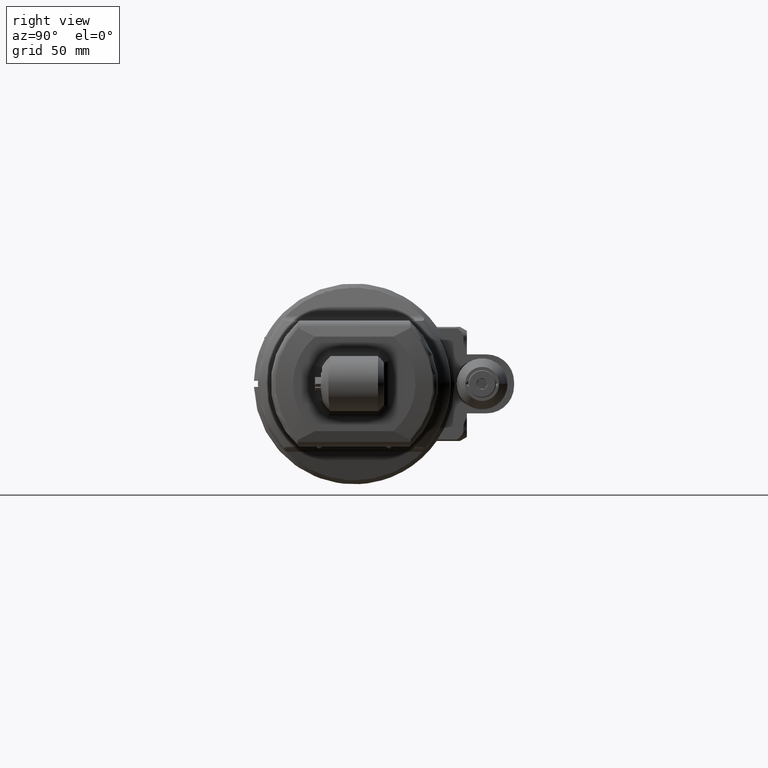
[diagram: clean part render]
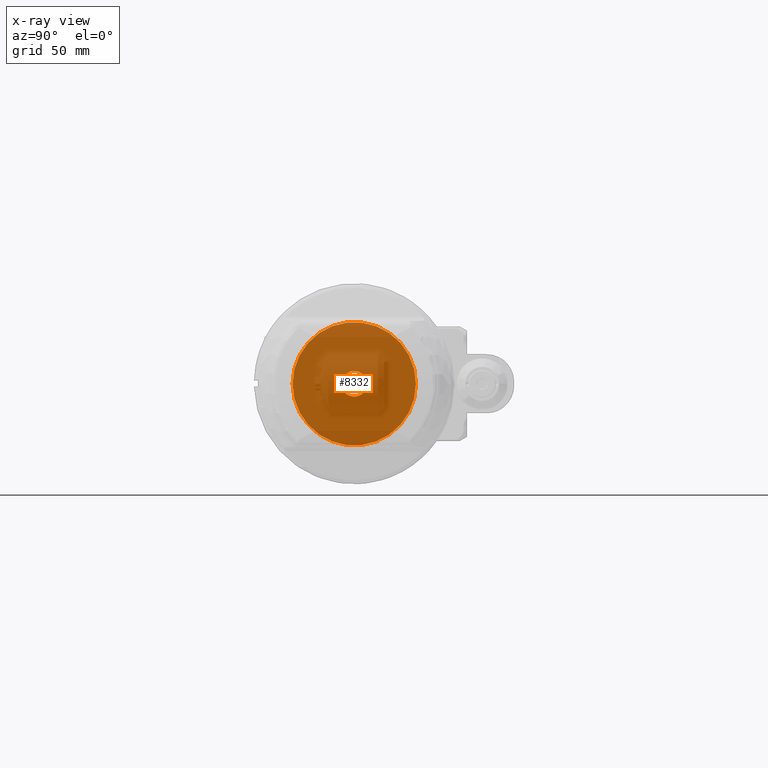
[diagram: x-ray — body ghosted, one internal face saturated and labeled with its STEP entity id]
A machine part, right view, then the same camera in x-ray: the body is ghosted and one INTERNAL B-rep face — a face not visible from any outside direction — is saturated and labeled: STEP entity #8332.
In plain terms, the highlighted planar face has unit normal (1, 0, 0).
Its self-contained STEP definition (entity closure, byte-faithful):
#306=FACE_BOUND('',#1575,.T.);
#562=PLANE('',#9219);
#1030=FACE_OUTER_BOUND('',#1574,.T.);
#1574=EDGE_LOOP('',(#7573));
#1575=EDGE_LOOP('',(#7574));
#3260=CIRCLE('',#9195,31.35);
#3269=CIRCLE('',#9220,6.5);
#4022=VERTEX_POINT('',#45324);
#4045=VERTEX_POINT('',#45421);
#5198=EDGE_CURVE('',#4022,#4022,#3260,.T.);
#5235=EDGE_CURVE('',#4045,#4045,#3269,.T.);
#7573=ORIENTED_EDGE('',*,*,#5198,.T.);
#7574=ORIENTED_EDGE('',*,*,#5235,.T.);
#8332=ADVANCED_FACE('',(#1030,#306),#562,.T.);
#9195=AXIS2_PLACEMENT_3D('',#45326,#11333,#11334);
#9219=AXIS2_PLACEMENT_3D('',#45420,#11399,#11400);
#9220=AXIS2_PLACEMENT_3D('',#45422,#11401,#11402);
#11333=DIRECTION('center_axis',(1.,0.,0.));
#11334=DIRECTION('ref_axis',(0.,1.,-1.400901549979E-9));
#11399=DIRECTION('center_axis',(1.,0.,0.));
#11400=DIRECTION('ref_axis',(0.,1.,-1.400901672444E-9));
#11401=DIRECTION('center_axis',(-1.,0.,0.));
#11402=DIRECTION('ref_axis',(0.,-1.,0.));
#45324=CARTESIAN_POINT('',(-44.0000000000002,31.35,-4.391826744364E-8));
#45326=CARTESIAN_POINT('Origin',(-44.0000000000002,0.,0.));
#45420=CARTESIAN_POINT('Origin',(-44.0000000000002,0.,0.));
#45421=CARTESIAN_POINT('',(-44.0000000000001,6.5,0.));
#45422=CARTESIAN_POINT('Origin',(-44.,0.,0.));